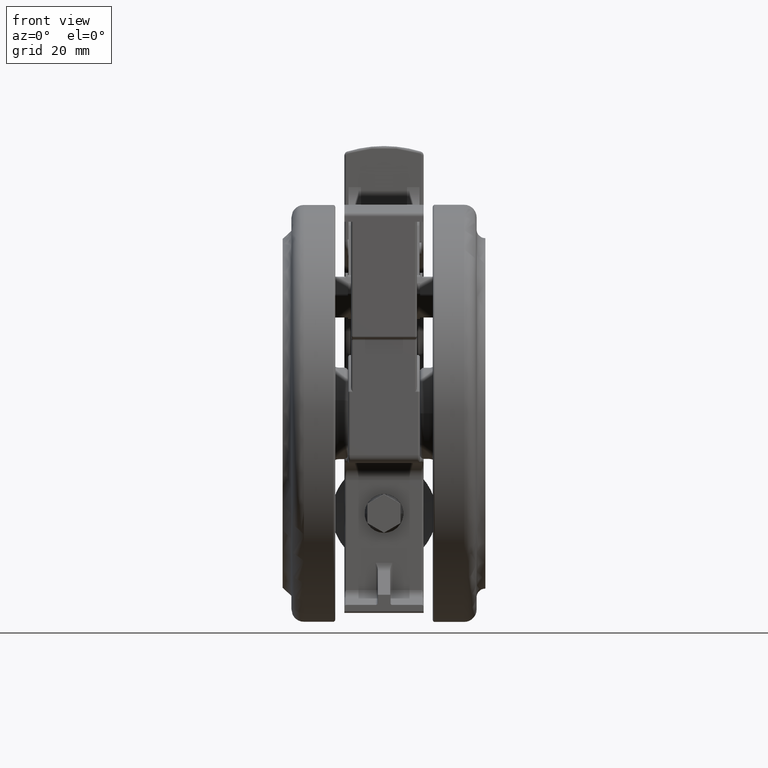
[diagram: clean part render]
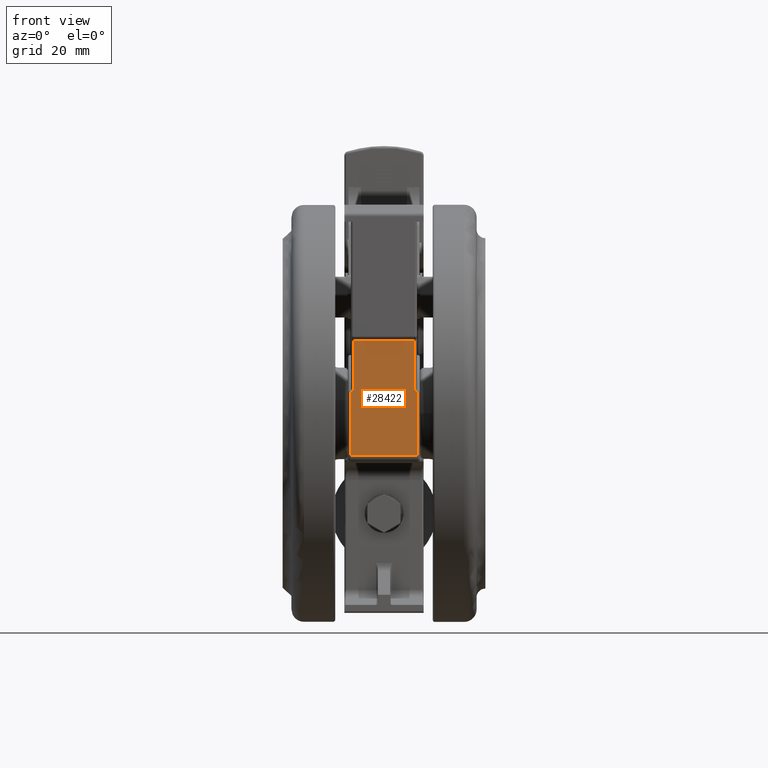
[diagram: same view with one face highlighted and labeled with its STEP entity id]
A machine part, front view. The second image highlights one B-rep face of the part: STEP entity #28422.
In plain terms, the highlighted planar face has unit normal (0, 1, -0).
Its self-contained STEP definition (entity closure, byte-faithful):
#131 = CARTESIAN_POINT ( 'NONE',  ( 5.099019513592778300, 12.99999999999999500, -31.69999999999995700 ) ) ;
#670 = EDGE_CURVE ( 'NONE', #20108, #844, #4283, .T. ) ;
#844 = VERTEX_POINT ( 'NONE', #14186 ) ;
#1480 = CARTESIAN_POINT ( 'NONE',  ( 5.099019513592779200, 12.99999999999999800, -14.79999999999995600 ) ) ;
#1597 = LINE ( 'NONE', #3347, #40559 ) ;
#1818 = ORIENTED_EDGE ( 'NONE', *, *, #11558, .T. ) ;
#2697 = DIRECTION ( 'NONE',  ( 1.067883571208054300E-016, -1.000000000000000000, 6.688773330916236600E-017 ) ) ;
#2712 = EDGE_CURVE ( 'NONE', #11854, #45422, #1597, .T. ) ;
#3347 = CARTESIAN_POINT ( 'NONE',  ( -10.00000000000000200, 12.99999999999999600, -14.79999999999995600 ) ) ;
#3754 = CARTESIAN_POINT ( 'NONE',  ( -10.00000000000000200, 12.99999999999999300, -32.39999999999995600 ) ) ;
#4283 = LINE ( 'NONE', #1480, #33224 ) ;
#4436 = VECTOR ( 'NONE', #36863, 1000.000000000000000 ) ;
#7024 = CARTESIAN_POINT ( 'NONE',  ( 5.099019513592778300, 12.99999999999999500, -32.39999999999995600 ) ) ;
#9432 = DIRECTION ( 'NONE',  ( -1.000000000000000000, -1.067883571208054300E-016, 2.126349141558171900E-017 ) ) ;
#10808 = DIRECTION ( 'NONE',  ( -2.126349141558171200E-017, -1.779100357716780700E-016, -1.000000000000000000 ) ) ;
#11558 = EDGE_CURVE ( 'NONE', #31899, #11854, #37576, .T. ) ;
#11854 = VERTEX_POINT ( 'NONE', #3754 ) ;
#12251 = DIRECTION ( 'NONE',  ( 1.000000000000000000, 1.067883571208054300E-016, -2.126349141558171900E-017 ) ) ;
#13091 = DIRECTION ( 'NONE',  ( -1.000000000000000000, -1.067883571208054300E-016, 2.126349141558171900E-017 ) ) ;
#14186 = CARTESIAN_POINT ( 'NONE',  ( 5.099019513592779200, 12.99999999999999800, -16.89999999999995200 ) ) ;
#18486 = DIRECTION ( 'NONE',  ( 2.126349141558171200E-017, 1.779100357716780700E-016, 1.000000000000000000 ) ) ;
#19223 = LINE ( 'NONE', #39439, #29283 ) ;
#20108 = VERTEX_POINT ( 'NONE', #30282 ) ;
#20281 = LINE ( 'NONE', #23474, #39151 ) ;
#20408 = ORIENTED_EDGE ( 'NONE', *, *, #25711, .T. ) ;
#21519 = CARTESIAN_POINT ( 'NONE',  ( 18.00000000000000000, 13.00000000000000000, -14.79999999999995600 ) ) ;
#21625 = ORIENTED_EDGE ( 'NONE', *, *, #42927, .T. ) ;
#23474 = CARTESIAN_POINT ( 'NONE',  ( 5.196152422706629400, 12.99999999999999800, -16.19999999999995700 ) ) ;
#23836 = ORIENTED_EDGE ( 'NONE', *, *, #33959, .T. ) ;
#24170 = EDGE_CURVE ( 'NONE', #844, #31492, #28692, .T. ) ;
#24631 = CARTESIAN_POINT ( 'NONE',  ( 17.50000000000000000, 13.00000000000000000, -16.89999999999995200 ) ) ;
#25127 = AXIS2_PLACEMENT_3D ( 'NONE', #21519, #2697, #29115 ) ;
#25711 = EDGE_CURVE ( 'NONE', #43259, #31899, #29131, .T. ) ;
#27576 = VECTOR ( 'NONE', #9432, 1000.000000000000000 ) ;
#27903 = DIRECTION ( 'NONE',  ( -2.126349141558171200E-017, -1.779100357716780700E-016, -1.000000000000000000 ) ) ;
#28162 = CARTESIAN_POINT ( 'NONE',  ( -10.00000000000000200, 12.99999999999999600, -16.19999999999995700 ) ) ;
#28422 = ADVANCED_FACE ( 'NONE', ( #43311 ), #44092, .F. ) ;
#28692 = LINE ( 'NONE', #33458, #47543 ) ;
#28735 = EDGE_CURVE ( 'NONE', #45422, #20108, #20281, .T. ) ;
#29115 = DIRECTION ( 'NONE',  ( 1.000000000000000000, 1.067883571208054300E-016, -2.126349141558171900E-017 ) ) ;
#29131 = LINE ( 'NONE', #7024, #47978 ) ;
#29283 = VECTOR ( 'NONE', #13091, 1000.000000000000000 ) ;
#30282 = CARTESIAN_POINT ( 'NONE',  ( 5.099019513592789800, 12.99999999999999800, -16.19999999999995700 ) ) ;
#30348 = CARTESIAN_POINT ( 'NONE',  ( 5.099019513592778300, 12.99999999999999500, -32.39999999999995600 ) ) ;
#31492 = VERTEX_POINT ( 'NONE', #24631 ) ;
#31899 = VERTEX_POINT ( 'NONE', #30348 ) ;
#32025 = CARTESIAN_POINT ( 'NONE',  ( -10.00000000000000200, 12.99999999999999300, -32.39999999999995600 ) ) ;
#33102 = CARTESIAN_POINT ( 'NONE',  ( 17.50000000000000000, 12.99999999999999600, -32.19999999999996000 ) ) ;
#33224 = VECTOR ( 'NONE', #27903, 1000.000000000000000 ) ;
#33458 = CARTESIAN_POINT ( 'NONE',  ( 18.00000000000000000, 13.00000000000000000, -16.89999999999995200 ) ) ;
#33959 = EDGE_CURVE ( 'NONE', #31492, #39564, #34551, .T. ) ;
#34551 = LINE ( 'NONE', #33102, #4436 ) ;
#36193 = ORIENTED_EDGE ( 'NONE', *, *, #2712, .T. ) ;
#36280 = CARTESIAN_POINT ( 'NONE',  ( 17.50000000000000000, 12.99999999999999600, -31.69999999999995700 ) ) ;
#36863 = DIRECTION ( 'NONE',  ( -2.126349141558171200E-017, -1.779100357716780700E-016, -1.000000000000000000 ) ) ;
#37576 = LINE ( 'NONE', #32025, #27576 ) ;
#37919 = ORIENTED_EDGE ( 'NONE', *, *, #670, .T. ) ;
#38368 = EDGE_LOOP ( 'NONE', ( #21625, #20408, #1818, #36193, #42954, #37919, #47140, #23836 ) ) ;
#39151 = VECTOR ( 'NONE', #12251, 1000.000000000000000 ) ;
#39439 = CARTESIAN_POINT ( 'NONE',  ( 18.00000000000000000, 12.99999999999999600, -31.69999999999995700 ) ) ;
#39564 = VERTEX_POINT ( 'NONE', #36280 ) ;
#40559 = VECTOR ( 'NONE', #18486, 1000.000000000000000 ) ;
#40999 = DIRECTION ( 'NONE',  ( 1.000000000000000000, 1.067883571208054300E-016, -2.126349141558171900E-017 ) ) ;
#42927 = EDGE_CURVE ( 'NONE', #39564, #43259, #19223, .T. ) ;
#42954 = ORIENTED_EDGE ( 'NONE', *, *, #28735, .T. ) ;
#43259 = VERTEX_POINT ( 'NONE', #131 ) ;
#43311 = FACE_OUTER_BOUND ( 'NONE', #38368, .T. ) ;
#44092 = PLANE ( 'NONE',  #25127 ) ;
#45422 = VERTEX_POINT ( 'NONE', #28162 ) ;
#47140 = ORIENTED_EDGE ( 'NONE', *, *, #24170, .T. ) ;
#47543 = VECTOR ( 'NONE', #40999, 1000.000000000000000 ) ;
#47978 = VECTOR ( 'NONE', #10808, 1000.000000000000000 ) ;